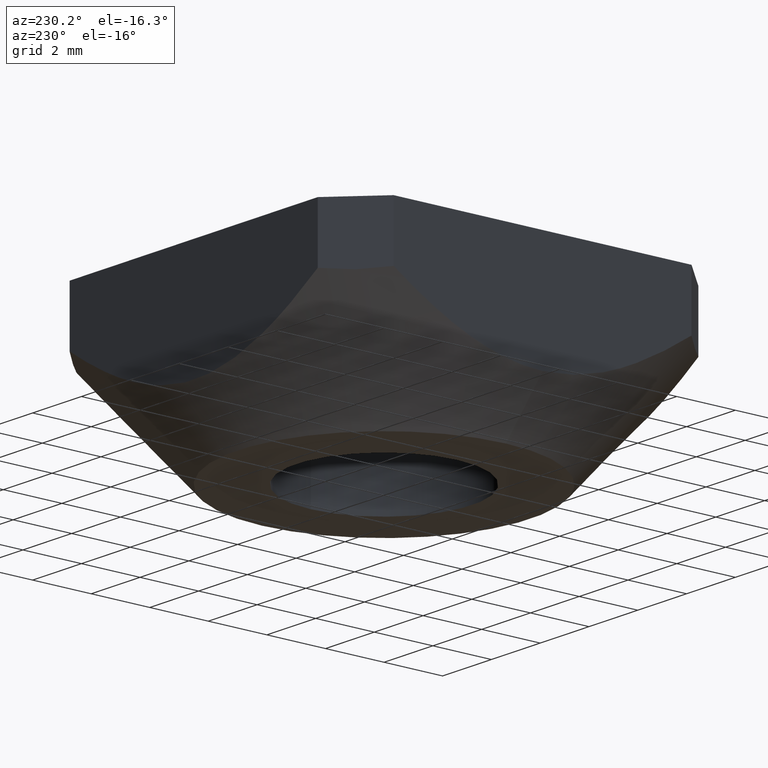
[diagram: clean part render]
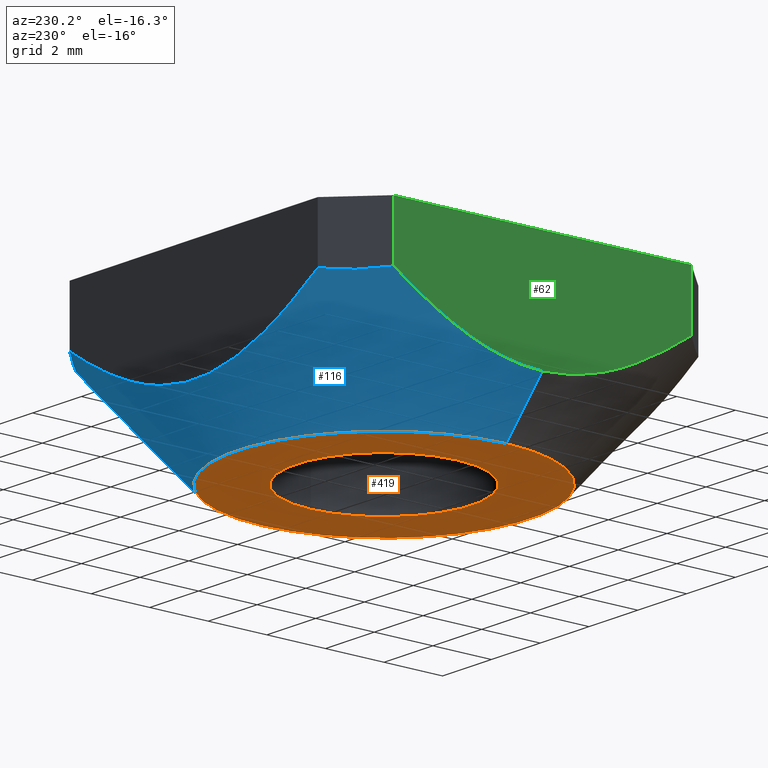
[diagram: same view with three faces highlighted in distinct colors, each labeled with its STEP entity id]
A machine part, auxiliary view with three faces highlighted in distinct colors.
Their STEP definitions:

[orange] entity #419 — the highlighted planar face has unit normal (0, 0, 1).
#9 = FACE_OUTER_BOUND ( 'NONE', #75, .T. ) ;
#21 = CARTESIAN_POINT ( 'NONE',  ( -4.683470219463361509E-16, 1.335708759934739698E-15, -5.500000002871543892 ) ) ;
#24 = VERTEX_POINT ( 'NONE', #276 ) ;
#48 = EDGE_CURVE ( 'NONE', #24, #237, #219, .T. ) ;
#75 = EDGE_LOOP ( 'NONE', ( #475, #528 ) ) ;
#76 = EDGE_CURVE ( 'NONE', #103, #342, #502, .T. ) ;
#103 = VERTEX_POINT ( 'NONE', #504 ) ;
#156 = CARTESIAN_POINT ( 'NONE',  ( 3.000000000000000000, 3.673940397442059868E-16, -5.500000000000000000 ) ) ;
#169 = CARTESIAN_POINT ( 'NONE',  ( 5.000000003148240779, 1.335708759934739698E-15, -5.500000002871543003 ) ) ;
#170 = AXIS2_PLACEMENT_3D ( 'NONE', #383, #251, #207 ) ;
#183 = CIRCLE ( 'NONE', #170, 5.000000003148241667 ) ;
#186 = PLANE ( 'NONE',  #317 ) ;
#196 = EDGE_CURVE ( 'NONE', #342, #103, #183, .T. ) ;
#206 = EDGE_LOOP ( 'NONE', ( #292, #363 ) ) ;
#207 = DIRECTION ( 'NONE',  ( 1.000000000000000000, 0.0000000000000000000, 1.734723474884541410E-16 ) ) ;
#219 = CIRCLE ( 'NONE', #428, 3.000000000000000000 ) ;
#235 = FACE_BOUND ( 'NONE', #206, .T. ) ;
#237 = VERTEX_POINT ( 'NONE', #156 ) ;
#242 = AXIS2_PLACEMENT_3D ( 'NONE', #21, #541, #547 ) ;
#251 = DIRECTION ( 'NONE',  ( -1.112060755793410790E-16, 1.112060755793410790E-16, 1.000000000000000000 ) ) ;
#261 = DIRECTION ( 'NONE',  ( -1.000000000000000000, 0.0000000000000000000, 0.0000000000000000000 ) ) ;
#263 = CARTESIAN_POINT ( 'NONE',  ( 0.0000000000000000000, 0.0000000000000000000, -5.500000000000000000 ) ) ;
#276 = CARTESIAN_POINT ( 'NONE',  ( -3.000000000000000000, 0.0000000000000000000, -5.500000000000000000 ) ) ;
#292 = ORIENTED_EDGE ( 'NONE', *, *, #48, .T. ) ;
#293 = EDGE_CURVE ( 'NONE', #237, #24, #449, .T. ) ;
#317 = AXIS2_PLACEMENT_3D ( 'NONE', #454, #323, #490 ) ;
#323 = DIRECTION ( 'NONE',  ( 0.0000000000000000000, 0.0000000000000000000, 1.000000000000000000 ) ) ;
#342 = VERTEX_POINT ( 'NONE', #169 ) ;
#363 = ORIENTED_EDGE ( 'NONE', *, *, #293, .T. ) ;
#368 = CARTESIAN_POINT ( 'NONE',  ( 0.0000000000000000000, 0.0000000000000000000, -5.500000000000000000 ) ) ;
#383 = CARTESIAN_POINT ( 'NONE',  ( -4.683470219463361509E-16, 1.335708759934739698E-15, -5.500000002871543892 ) ) ;
#386 = AXIS2_PLACEMENT_3D ( 'NONE', #263, #522, #261 ) ;
#414 = DIRECTION ( 'NONE',  ( -1.000000000000000000, 0.0000000000000000000, 0.0000000000000000000 ) ) ;
#419 = ADVANCED_FACE ( 'NONE', ( #235, #9 ), #186, .F. ) ;
#428 = AXIS2_PLACEMENT_3D ( 'NONE', #368, #539, #414 ) ;
#449 = CIRCLE ( 'NONE', #386, 3.000000000000000000 ) ;
#454 = CARTESIAN_POINT ( 'NONE',  ( 7.734518000000000462E-16, 5.551114999999999878E-16, -5.500000000000000000 ) ) ;
#475 = ORIENTED_EDGE ( 'NONE', *, *, #196, .F. ) ;
#490 = DIRECTION ( 'NONE',  ( 1.000000000000000000, 0.0000000000000000000, -0.0000000000000000000 ) ) ;
#502 = CIRCLE ( 'NONE', #242, 5.000000003148241667 ) ;
#504 = CARTESIAN_POINT ( 'NONE',  ( -5.000000003148242556, 2.347935449360633441E-15, -5.500000002871544780 ) ) ;
#522 = DIRECTION ( 'NONE',  ( -0.0000000000000000000, -0.0000000000000000000, 1.000000000000000000 ) ) ;
#528 = ORIENTED_EDGE ( 'NONE', *, *, #76, .F. ) ;
#539 = DIRECTION ( 'NONE',  ( -0.0000000000000000000, -0.0000000000000000000, 1.000000000000000000 ) ) ;
#541 = DIRECTION ( 'NONE',  ( -1.112060755793410790E-16, 1.112060755793410790E-16, 1.000000000000000000 ) ) ;
#547 = DIRECTION ( 'NONE',  ( 1.000000000000000000, 0.0000000000000000000, 1.734723474884541410E-16 ) ) ;

[blue] entity #116 — the highlighted conical surface has half-angle 42.368 deg.
#1 = CARTESIAN_POINT ( 'NONE',  ( -6.500000000000000000, 0.4650942893279675916, -3.855463141347040601 ) ) ;
#11 = CARTESIAN_POINT ( 'NONE',  ( 1.815581894366168791, 6.500000000000003553, -3.598278178908117297 ) ) ;
#13 = CARTESIAN_POINT ( 'NONE',  ( 6.500000000000000888, 2.258115985482339383, -3.449951132496112738 ) ) ;
#15 = CARTESIAN_POINT ( 'NONE',  ( -0.9208216822838610760, 6.500000000000002665, -3.800336665431251593 ) ) ;
#51 = CARTESIAN_POINT ( 'NONE',  ( 4.703608218064447399, 6.499999999966565412, -2.191533057788421335 ) ) ;
#54 = CARTESIAN_POINT ( 'NONE',  ( -4.314592221427059116, 6.500000000000005329, -2.436609088893727293 ) ) ;
#72 = VERTEX_POINT ( 'NONE', #133 ) ;
#77 = DIRECTION ( 'NONE',  ( 0.6738935147379919721, 8.216221638422233690E-17, 0.7388284853699643717 ) ) ;
#83 = B_SPLINE_CURVE_WITH_KNOTS ( 'NONE', 3,
 ( #430, #339, #471, #111 ),
 .UNSPECIFIED., .F., .F.,
 ( 4, 4 ),
 ( 6.051050471646755322E-14, 0.002000000000007149704 ),
 .UNSPECIFIED. ) ;
#87 = ORIENTED_EDGE ( 'NONE', *, *, #260, .F. ) ;
#97 = CARTESIAN_POINT ( 'NONE',  ( 3.107021229645465343, 6.500000000000003553, -3.094896613372098315 ) ) ;
#102 = VERTEX_POINT ( 'NONE', #171 ) ;
#103 = VERTEX_POINT ( 'NONE', #504 ) ;
#109 = ORIENTED_EDGE ( 'NONE', *, *, #125, .F. ) ;
#110 = CARTESIAN_POINT ( 'NONE',  ( -8.673617379884035472E-16, 1.734723475976807094E-15, -1.911934207335162839 ) ) ;
#111 = CARTESIAN_POINT ( 'NONE',  ( -6.500000000012470025, 5.085786437677112026, -1.933334202242378286 ) ) ;
#116 = ADVANCED_FACE ( 'NONE', ( #370 ), #527, .T. ) ;
#124 = CARTESIAN_POINT ( 'NONE',  ( 6.500000000000002665, 4.314560848977908591, -2.436628880351495496 ) ) ;
#125 = EDGE_CURVE ( 'NONE', #194, #72, #83, .T. ) ;
#126 = VECTOR ( 'NONE', #484, 1000.000000000000114 ) ;
#131 = CARTESIAN_POINT ( 'NONE',  ( -4.703623369059489079, 6.500000000000002665, -2.191522821825996559 ) ) ;
#133 = CARTESIAN_POINT ( 'NONE',  ( -6.500000000012470025, 5.085786437677112026, -1.933334202242378286 ) ) ;
#149 = DIRECTION ( 'NONE',  ( -1.112060755793410790E-16, 1.112060755793410790E-16, 1.000000000000000000 ) ) ;
#163 = CARTESIAN_POINT ( 'NONE',  ( 8.272713925181706784, 1.734723475976807094E-15, -1.911934207335161950 ) ) ;
#165 = CARTESIAN_POINT ( 'NONE',  ( -6.499999999999999112, 1.564844549028617558E-15, -3.855463141347041045 ) ) ;
#169 = CARTESIAN_POINT ( 'NONE',  ( 5.000000003148240779, 1.335708759934739698E-15, -5.500000002871543003 ) ) ;
#170 = AXIS2_PLACEMENT_3D ( 'NONE', #383, #251, #207 ) ;
#171 = CARTESIAN_POINT ( 'NONE',  ( 6.500000000012471801, 5.085786437614437716, -1.933334202284715309 ) ) ;
#183 = CIRCLE ( 'NONE', #170, 5.000000003148241667 ) ;
#184 = ORIENTED_EDGE ( 'NONE', *, *, #567, .F. ) ;
#188 = CARTESIAN_POINT ( 'NONE',  ( 6.500000000000000888, 2.268358371881253341E-15, -3.855463141347035716 ) ) ;
#194 = VERTEX_POINT ( 'NONE', #298 ) ;
#196 = EDGE_CURVE ( 'NONE', #342, #103, #183, .T. ) ;
#198 = VERTEX_POINT ( 'NONE', #472 ) ;
#207 = DIRECTION ( 'NONE',  ( 1.000000000000000000, 0.0000000000000000000, 1.734723474884541410E-16 ) ) ;
#208 = CARTESIAN_POINT ( 'NONE',  ( -6.499999999999996447, 3.516297865762422870, -2.888213576328815702 ) ) ;
#212 = VECTOR ( 'NONE', #77, 1000.000000000000114 ) ;
#217 = CARTESIAN_POINT ( 'NONE',  ( -6.499999999966561859, 4.703623633186841069, -2.191522643361974332 ) ) ;
#218 = CARTESIAN_POINT ( 'NONE',  ( 6.500000000000000888, 0.9206392684270442439, -3.800366371404682475 ) ) ;
#228 = CARTESIAN_POINT ( 'NONE',  ( 2.258066242822476255, 6.500000000000003553, -3.449969955218920692 ) ) ;
#230 = CARTESIAN_POINT ( 'NONE',  ( -0.4653350873336496996, 6.500000000000003553, -3.855445476124739201 ) ) ;
#231 = CARTESIAN_POINT ( 'NONE',  ( 4.314559355035864741, 6.500000000000004441, -2.436630007698926459 ) ) ;
#239 = CARTESIAN_POINT ( 'NONE',  ( 6.500000000000000000, 4.703607954553438830, -2.191533235836048643 ) ) ;
#251 = DIRECTION ( 'NONE',  ( -1.112060755793410790E-16, 1.112060755793410790E-16, 1.000000000000000000 ) ) ;
#256 = CARTESIAN_POINT ( 'NONE',  ( -6.499999999999999112, 2.258188589613317809, -3.449924592231263798 ) ) ;
#260 = EDGE_CURVE ( 'NONE', #72, #315, #456, .T. ) ;
#265 = B_SPLINE_CURVE_WITH_KNOTS ( 'NONE', 3,
 ( #325, #51, #231, #498, #97, #228, #11, #497, #536, #230, #15, #327, #411, #406, #320, #54, #131, #289 ),
 .UNSPECIFIED., .F., .F.,
 ( 4, 2, 2, 2, 2, 2, 2, 2, 4 ),
 ( 8.321467144627602380E-14, 0.001375126083683638313, 0.002750252167284061942, 0.004125378250884485787, 0.005500504334484909198, 0.006875630418085332610, 0.008250756501685756888, 0.009625882585286179433, 0.01100100866888660371 ),
 .UNSPECIFIED. ) ;
#266 = CARTESIAN_POINT ( 'NONE',  ( 6.500000000000000888, 0.4651318099034550402, -3.855463141347036604 ) ) ;
#268 = EDGE_CURVE ( 'NONE', #342, #314, #380, .T. ) ;
#279 = EDGE_CURVE ( 'NONE', #103, #315, #356, .T. ) ;
#281 = B_SPLINE_CURVE_WITH_KNOTS ( 'NONE', 3,
 ( #188, #266, #218, #329, #13, #530, #543, #124, #239, #444 ),
 .UNSPECIFIED., .F., .F.,
 ( 4, 2, 2, 2, 4 ),
 ( 0.005500282472162170040, 0.006875464021324488584, 0.008250645570486806260, 0.009625827119649123936, 0.01100100866881144161 ),
 .UNSPECIFIED. ) ;
#286 = EDGE_CURVE ( 'NONE', #102, #198, #443, .T. ) ;
#289 = CARTESIAN_POINT ( 'NONE',  ( -5.085786437677106697, 6.500000000012475354, -1.933334202242377842 ) ) ;
#298 = CARTESIAN_POINT ( 'NONE',  ( -5.085786437677106697, 6.500000000012475354, -1.933334202242377842 ) ) ;
#303 = DIRECTION ( 'NONE',  ( 1.000000000000000000, 0.0000000000000000000, 1.048460935350610842E-16 ) ) ;
#306 = CARTESIAN_POINT ( 'NONE',  ( 6.500000000012471801, 5.085786437614437716, -1.933334202284715309 ) ) ;
#307 = CARTESIAN_POINT ( 'NONE',  ( 6.028595479215633546, 5.557190958371792888, -2.021894486489666409 ) ) ;
#314 = VERTEX_POINT ( 'NONE', #349 ) ;
#315 = VERTEX_POINT ( 'NONE', #165 ) ;
#320 = CARTESIAN_POINT ( 'NONE',  ( -3.516309706215212660, 6.500000000000002665, -2.888207160138617002 ) ) ;
#325 = CARTESIAN_POINT ( 'NONE',  ( 5.085786437677108474, 6.500000000012474466, -1.933334202242375177 ) ) ;
#327 = CARTESIAN_POINT ( 'NONE',  ( -1.815743295979880489, 6.500000000000003553, -3.598228176136374135 ) ) ;
#329 = CARTESIAN_POINT ( 'NONE',  ( 6.500000000000000888, 1.815600839890428864, -3.598271834400735170 ) ) ;
#338 = ORIENTED_EDGE ( 'NONE', *, *, #196, .T. ) ;
#339 = CARTESIAN_POINT ( 'NONE',  ( -5.557190958361342581, 6.028595479226082077, -2.021894486487707532 ) ) ;
#342 = VERTEX_POINT ( 'NONE', #169 ) ;
#346 = CARTESIAN_POINT ( 'NONE',  ( -6.500000000012470025, 5.085786437677112026, -1.933334202242378286 ) ) ;
#349 = CARTESIAN_POINT ( 'NONE',  ( 6.500000000000000888, 2.268358371881253341E-15, -3.855463141347035716 ) ) ;
#356 = LINE ( 'NONE', #390, #126 ) ;
#370 = FACE_OUTER_BOUND ( 'NONE', #439, .T. ) ;
#380 = LINE ( 'NONE', #163, #212 ) ;
#383 = CARTESIAN_POINT ( 'NONE',  ( -4.683470219463361509E-16, 1.335708759934739698E-15, -5.500000002871543892 ) ) ;
#390 = CARTESIAN_POINT ( 'NONE',  ( -8.272713925181710337, 2.747838738850358616E-15, -1.911934207335163727 ) ) ;
#406 = CARTESIAN_POINT ( 'NONE',  ( -3.107124692420668133, 6.500000000000003553, -3.094845548749639796 ) ) ;
#411 = CARTESIAN_POINT ( 'NONE',  ( -2.258238322193991898, 6.500000000000002665, -3.449905772485382105 ) ) ;
#421 = ORIENTED_EDGE ( 'NONE', *, *, #268, .F. ) ;
#430 = CARTESIAN_POINT ( 'NONE',  ( -5.085786437677106697, 6.500000000012475354, -1.933334202242377842 ) ) ;
#432 = EDGE_CURVE ( 'NONE', #314, #102, #281, .T. ) ;
#439 = EDGE_LOOP ( 'NONE', ( #338, #518, #87, #109, #184, #565, #450, #421 ) ) ;
#443 = B_SPLINE_CURVE_WITH_KNOTS ( 'NONE', 3,
 ( #306, #307, #529, #526 ),
 .UNSPECIFIED., .F., .F.,
 ( 4, 4 ),
 ( 1.619525838437646925E-14, 0.002000000000007150572 ),
 .UNSPECIFIED. ) ;
#444 = CARTESIAN_POINT ( 'NONE',  ( 6.500000000012471801, 5.085786437614437716, -1.933334202284715309 ) ) ;
#450 = ORIENTED_EDGE ( 'NONE', *, *, #432, .F. ) ;
#456 = B_SPLINE_CURVE_WITH_KNOTS ( 'NONE', 3,
 ( #346, #217, #478, #208, #523, #256, #520, #568, #1, #570 ),
 .UNSPECIFIED., .F., .F.,
 ( 4, 2, 2, 2, 4 ),
 ( 8.321467144627602380E-14, 0.001375070618102952223, 0.002750141236122689761, 0.004125211854142427081, 0.005500282472162164836 ),
 .UNSPECIFIED. ) ;
#471 = CARTESIAN_POINT ( 'NONE',  ( -6.028595479244057920, 5.557190958382851598, -2.021894486498657439 ) ) ;
#472 = CARTESIAN_POINT ( 'NONE',  ( 5.085786437677108474, 6.500000000012474466, -1.933334202242375177 ) ) ;
#478 = CARTESIAN_POINT ( 'NONE',  ( -6.500000000000000888, 4.314590728831701583, -2.436610215365375254 ) ) ;
#484 = DIRECTION ( 'NONE',  ( -0.6738935147379921942, 1.646903699632265117E-16, 0.7388284853699641497 ) ) ;
#497 = CARTESIAN_POINT ( 'NONE',  ( 0.9205997802961283227, 6.500000000000003553, -3.800373221879208341 ) ) ;
#498 = CARTESIAN_POINT ( 'NONE',  ( 3.516232638360159868, 6.500000000000003553, -2.888248432145468669 ) ) ;
#504 = CARTESIAN_POINT ( 'NONE',  ( -5.000000003148242556, 2.347935449360633441E-15, -5.500000002871544780 ) ) ;
#518 = ORIENTED_EDGE ( 'NONE', *, *, #279, .T. ) ;
#520 = CARTESIAN_POINT ( 'NONE',  ( -6.500000000000000000, 1.815724347486218138, -3.598234520951652637 ) ) ;
#523 = CARTESIAN_POINT ( 'NONE',  ( -6.500000000000000000, 3.107104337365197644, -3.094856044108543980 ) ) ;
#526 = CARTESIAN_POINT ( 'NONE',  ( 5.085786437677108474, 6.500000000012474466, -1.933334202242375177 ) ) ;
#527 = CONICAL_SURFACE ( 'NONE', #554, 8.272713925181706784, 0.7394660560889116940 ) ;
#529 = CARTESIAN_POINT ( 'NONE',  ( 5.557190958393293911, 6.028595479233616494, -2.021894486500614985 ) ) ;
#530 = CARTESIAN_POINT ( 'NONE',  ( 6.500000000000002665, 3.107041589949054661, -3.094886115538637128 ) ) ;
#536 = CARTESIAN_POINT ( 'NONE',  ( 0.4648848418447535380, 6.500000000000003553, -3.855480798021075461 ) ) ;
#543 = CARTESIAN_POINT ( 'NONE',  ( 6.500000000000001776, 3.516244482516675429, -2.888242014042283312 ) ) ;
#554 = AXIS2_PLACEMENT_3D ( 'NONE', #110, #149, #303 ) ;
#565 = ORIENTED_EDGE ( 'NONE', *, *, #286, .F. ) ;
#567 = EDGE_CURVE ( 'NONE', #198, #194, #265, .T. ) ;
#568 = CARTESIAN_POINT ( 'NONE',  ( -6.499999999999999112, 0.9207822176421314175, -3.800343512463973727 ) ) ;
#570 = CARTESIAN_POINT ( 'NONE',  ( -6.499999999999999112, 1.564844549028617558E-15, -3.855463141347041045 ) ) ;

[green] entity #62 — the highlighted planar face has unit normal (-1, 0, 0).
#1 = CARTESIAN_POINT ( 'NONE',  ( -6.500000000000000000, 0.4650942893279675916, -3.855463141347040601 ) ) ;
#14 = CARTESIAN_POINT ( 'NONE',  ( -6.499999999999999112, 5.085786437626910406, 0.0000000000000000000 ) ) ;
#18 = LINE ( 'NONE', #137, #486 ) ;
#25 = VERTEX_POINT ( 'NONE', #448 ) ;
#40 = DIRECTION ( 'NONE',  ( 0.0000000000000000000, -1.000000000000000000, -0.0000000000000000000 ) ) ;
#62 = ADVANCED_FACE ( 'NONE', ( #563 ), #233, .T. ) ;
#68 = EDGE_CURVE ( 'NONE', #25, #72, #18, .T. ) ;
#72 = VERTEX_POINT ( 'NONE', #133 ) ;
#98 = CARTESIAN_POINT ( 'NONE',  ( -6.500000000000000888, -5.085786437626906853, 0.0000000000000000000 ) ) ;
#115 = CARTESIAN_POINT ( 'NONE',  ( -6.500000000000000000, -4.703607954548214565, -2.191533235839579596 ) ) ;
#117 = CARTESIAN_POINT ( 'NONE',  ( -6.499999999999999112, 6.591949000000000730E-16, 0.0000000000000000000 ) ) ;
#123 = ORIENTED_EDGE ( 'NONE', *, *, #260, .T. ) ;
#127 = ORIENTED_EDGE ( 'NONE', *, *, #300, .F. ) ;
#133 = CARTESIAN_POINT ( 'NONE',  ( -6.500000000012470025, 5.085786437677112026, -1.933334202242378286 ) ) ;
#135 = LINE ( 'NONE', #117, #245 ) ;
#137 = CARTESIAN_POINT ( 'NONE',  ( -6.499999999999999112, 5.085786437626910406, 0.0000000000000000000 ) ) ;
#148 = EDGE_CURVE ( 'NONE', #315, #358, #172, .T. ) ;
#151 = CARTESIAN_POINT ( 'NONE',  ( -6.499999999999999112, 1.564844549028617558E-15, -3.855463141347041045 ) ) ;
#165 = CARTESIAN_POINT ( 'NONE',  ( -6.499999999999999112, 1.564844549028617558E-15, -3.855463141347041045 ) ) ;
#172 = B_SPLINE_CURVE_WITH_KNOTS ( 'NONE', 3,
 ( #151, #200, #253, #426, #385, #514, #299, #250, #115, #381 ),
 .UNSPECIFIED., .F., .F.,
 ( 4, 2, 2, 2, 4 ),
 ( 0.005500282472162164836, 0.006875464021343275639, 0.008250645570524385575, 0.009625827119705495510, 0.01100100866888660718 ),
 .UNSPECIFIED. ) ;
#200 = CARTESIAN_POINT ( 'NONE',  ( -6.500000000000000000, -0.4651318099098080694, -3.855463141347041045 ) ) ;
#208 = CARTESIAN_POINT ( 'NONE',  ( -6.499999999999996447, 3.516297865762422870, -2.888213576328815702 ) ) ;
#217 = CARTESIAN_POINT ( 'NONE',  ( -6.499999999966561859, 4.703623633186841069, -2.191522643361974332 ) ) ;
#233 = PLANE ( 'NONE',  #308 ) ;
#245 = VECTOR ( 'NONE', #40, 1000.000000000000000 ) ;
#250 = CARTESIAN_POINT ( 'NONE',  ( -6.499999999999999112, -4.314560849031610523, -2.436628880319039236 ) ) ;
#253 = CARTESIAN_POINT ( 'NONE',  ( -6.499999999999999112, -0.9206392684394899550, -3.800366371403174792 ) ) ;
#256 = CARTESIAN_POINT ( 'NONE',  ( -6.499999999999999112, 2.258188589613317809, -3.449924592231263798 ) ) ;
#260 = EDGE_CURVE ( 'NONE', #72, #315, #456, .T. ) ;
#288 = DIRECTION ( 'NONE',  ( 0.0000000000000000000, 0.0000000000000000000, 1.000000000000000000 ) ) ;
#294 = EDGE_CURVE ( 'NONE', #482, #358, #388, .T. ) ;
#299 = CARTESIAN_POINT ( 'NONE',  ( -6.500000000000000000, -3.516244482561148299, -2.888242014019203996 ) ) ;
#300 = EDGE_CURVE ( 'NONE', #25, #482, #135, .T. ) ;
#308 = AXIS2_PLACEMENT_3D ( 'NONE', #14, #324, #288 ) ;
#315 = VERTEX_POINT ( 'NONE', #165 ) ;
#324 = DIRECTION ( 'NONE',  ( -1.000000000000000000, 0.0000000000000000000, 0.0000000000000000000 ) ) ;
#346 = CARTESIAN_POINT ( 'NONE',  ( -6.500000000012470025, 5.085786437677112026, -1.933334202242378286 ) ) ;
#351 = ORIENTED_EDGE ( 'NONE', *, *, #68, .T. ) ;
#358 = VERTEX_POINT ( 'NONE', #441 ) ;
#377 = VECTOR ( 'NONE', #573, 1000.000000000000000 ) ;
#381 = CARTESIAN_POINT ( 'NONE',  ( -6.500000000012470913, -5.085786437677108474, -1.933334202242376954 ) ) ;
#385 = CARTESIAN_POINT ( 'NONE',  ( -6.500000000000000000, -2.258115985512184398, -3.449951132485600258 ) ) ;
#388 = LINE ( 'NONE', #392, #377 ) ;
#392 = CARTESIAN_POINT ( 'NONE',  ( -6.500000000000000888, -5.085786437626906853, 0.0000000000000000000 ) ) ;
#426 = CARTESIAN_POINT ( 'NONE',  ( -6.499999999999996447, -1.815600839914668585, -3.598271834393967250 ) ) ;
#441 = CARTESIAN_POINT ( 'NONE',  ( -6.500000000012470913, -5.085786437677108474, -1.933334202242376954 ) ) ;
#448 = CARTESIAN_POINT ( 'NONE',  ( -6.499999999999999112, 5.085786437626910406, 0.0000000000000000000 ) ) ;
#456 = B_SPLINE_CURVE_WITH_KNOTS ( 'NONE', 3,
 ( #346, #217, #478, #208, #523, #256, #520, #568, #1, #570 ),
 .UNSPECIFIED., .F., .F.,
 ( 4, 2, 2, 2, 4 ),
 ( 8.321467144627602380E-14, 0.001375070618102952223, 0.002750141236122689761, 0.004125211854142427081, 0.005500282472162164836 ),
 .UNSPECIFIED. ) ;
#458 = DIRECTION ( 'NONE',  ( -0.0000000000000000000, -0.0000000000000000000, -1.000000000000000000 ) ) ;
#465 = EDGE_LOOP ( 'NONE', ( #127, #351, #123, #548, #487 ) ) ;
#478 = CARTESIAN_POINT ( 'NONE',  ( -6.500000000000000888, 4.314590728831701583, -2.436610215365375254 ) ) ;
#482 = VERTEX_POINT ( 'NONE', #98 ) ;
#486 = VECTOR ( 'NONE', #458, 1000.000000000000000 ) ;
#487 = ORIENTED_EDGE ( 'NONE', *, *, #294, .F. ) ;
#514 = CARTESIAN_POINT ( 'NONE',  ( -6.499999999999999112, -3.107041589988807306, -3.094886115520043113 ) ) ;
#520 = CARTESIAN_POINT ( 'NONE',  ( -6.500000000000000000, 1.815724347486218138, -3.598234520951652637 ) ) ;
#523 = CARTESIAN_POINT ( 'NONE',  ( -6.500000000000000000, 3.107104337365197644, -3.094856044108543980 ) ) ;
#548 = ORIENTED_EDGE ( 'NONE', *, *, #148, .T. ) ;
#563 = FACE_OUTER_BOUND ( 'NONE', #465, .T. ) ;
#568 = CARTESIAN_POINT ( 'NONE',  ( -6.499999999999999112, 0.9207822176421314175, -3.800343512463973727 ) ) ;
#570 = CARTESIAN_POINT ( 'NONE',  ( -6.499999999999999112, 1.564844549028617558E-15, -3.855463141347041045 ) ) ;
#573 = DIRECTION ( 'NONE',  ( -0.0000000000000000000, -0.0000000000000000000, -1.000000000000000000 ) ) ;